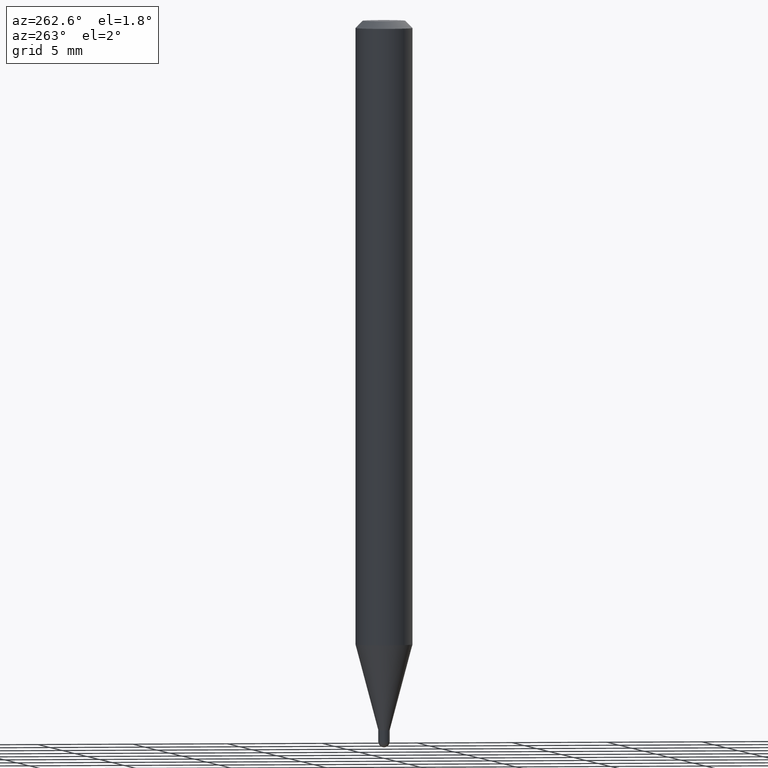
[diagram: clean part render]
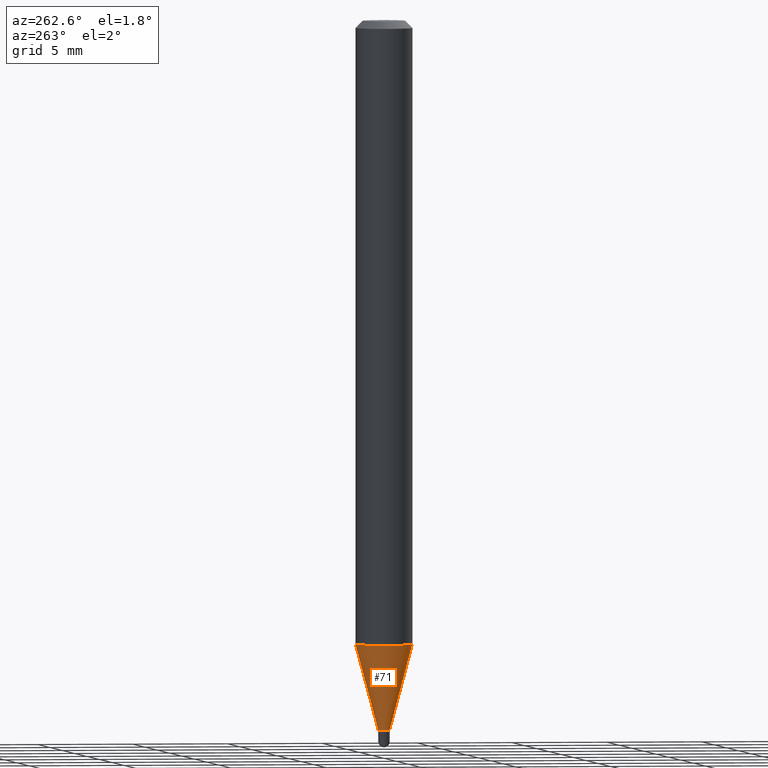
[diagram: same view with one face highlighted and labeled with its STEP entity id]
A machine part, auxiliary view. The second image highlights one B-rep face of the part: STEP entity #71.
In plain terms, the highlighted conical surface has half-angle 15 deg.
Its self-contained STEP definition (entity closure, byte-faithful):
#2 = VERTEX_POINT ( 'NONE', #429 ) ;
#11 = EDGE_CURVE ( 'NONE', #242, #2, #331, .T. ) ;
#12 = LINE ( 'NONE', #192, #171 ) ;
#27 = VECTOR ( 'NONE', #327, 39.37007874015748854 ) ;
#71 = ADVANCED_FACE ( 'NONE', ( #306 ), #351, .T. ) ;
#107 = DIRECTION ( 'NONE',  ( -2.445423680011858089E-29, 3.491545962091702599E-15, 1.000000000000000000 ) ) ;
#112 = ORIENTED_EDGE ( 'NONE', *, *, #346, .T. ) ;
#133 = EDGE_CURVE ( 'NONE', #201, #194, #473, .T. ) ;
#136 = DIRECTION ( 'NONE',  ( -6.982962677686266711E-15, -1.000000000000000000, 0.000000000000000000 ) ) ;
#145 = DIRECTION ( 'NONE',  ( -2.445423680011858089E-29, 3.491545962091702599E-15, 1.000000000000000000 ) ) ;
#155 = EDGE_LOOP ( 'NONE', ( #441, #445, #112, #417 ) ) ;
#163 = DIRECTION ( 'NONE',  ( -1.807323732225379838E-15, -0.2588190451025252914, 0.9659258262890670910 ) ) ;
#171 = VECTOR ( 'NONE', #163, 39.37007874015748143 ) ;
#185 = CARTESIAN_POINT ( 'NONE',  ( 3.572030369393320599E-29, -5.100101186827348923E-15, -1.460699999999999887 ) ) ;
#192 = CARTESIAN_POINT ( 'NONE',  ( -8.239895959665980251E-17, -0.01180000000000475287, -1.460699999999999887 ) ) ;
#194 = VERTEX_POINT ( 'NONE', #422 ) ;
#201 = VERTEX_POINT ( 'NONE', #493 ) ;
#229 = AXIS2_PLACEMENT_3D ( 'NONE', #450, #413, #254 ) ;
#242 = VERTEX_POINT ( 'NONE', #295 ) ;
#254 = DIRECTION ( 'NONE',  ( -6.982962677686265922E-15, -1.000000000000000000, 4.626330217890369336E-15 ) ) ;
#269 = DIRECTION ( 'NONE',  ( -6.982962677686266711E-15, -1.000000000000000000, 0.000000000000000000 ) ) ;
#295 = CARTESIAN_POINT ( 'NONE',  ( 2.517097641430478704E-16, 0.01179999999999455269, -1.460699999999999887 ) ) ;
#306 = FACE_OUTER_BOUND ( 'NONE', #155, .T. ) ;
#311 = CARTESIAN_POINT ( 'NONE',  ( 3.572030369393320599E-29, -5.100101186827348923E-15, -1.460699999999999887 ) ) ;
#327 = DIRECTION ( 'NONE',  ( 1.839019923739650408E-15, 0.2588190451025320082, 0.9659258262890650926 ) ) ;
#331 = CIRCLE ( 'NONE', #481, 0.01179999999999965278 ) ;
#333 = LINE ( 'NONE', #411, #27 ) ;
#346 = EDGE_CURVE ( 'NONE', #2, #194, #12, .T. ) ;
#351 = CONICAL_SURFACE ( 'NONE', #419, 0.01179999999999965278, 0.2617993877991576235 ) ;
#366 = EDGE_CURVE ( 'NONE', #242, #201, #333, .T. ) ;
#411 = CARTESIAN_POINT ( 'NONE',  ( 8.384404281972505075E-17, 0.01179999999999455269, -1.460699999999999887 ) ) ;
#413 = DIRECTION ( 'NONE',  ( -2.445423680011858089E-29, 3.491545962091702599E-15, 1.000000000000000000 ) ) ;
#417 = ORIENTED_EDGE ( 'NONE', *, *, #133, .F. ) ;
#419 = AXIS2_PLACEMENT_3D ( 'NONE', #311, #107, #269 ) ;
#422 = CARTESIAN_POINT ( 'NONE',  ( -4.123439461173426262E-16, -0.05905000000000448085, -1.284360599342374565 ) ) ;
#429 = CARTESIAN_POINT ( 'NONE',  ( -8.239895959665980251E-17, -0.01180000000000475287, -1.460699999999999887 ) ) ;
#441 = ORIENTED_EDGE ( 'NONE', *, *, #366, .F. ) ;
#445 = ORIENTED_EDGE ( 'NONE', *, *, #11, .T. ) ;
#450 = CARTESIAN_POINT ( 'NONE',  ( 3.140805823306065570E-29, -4.484404064503547858E-15, -1.284360599342374787 ) ) ;
#473 = CIRCLE ( 'NONE', #229, 0.05904999999999999832 ) ;
#481 = AXIS2_PLACEMENT_3D ( 'NONE', #185, #145, #136 ) ;
#493 = CARTESIAN_POINT ( 'NONE',  ( 4.195754854663704065E-16, 0.05904999999999550886, -1.284360599342375009 ) ) ;